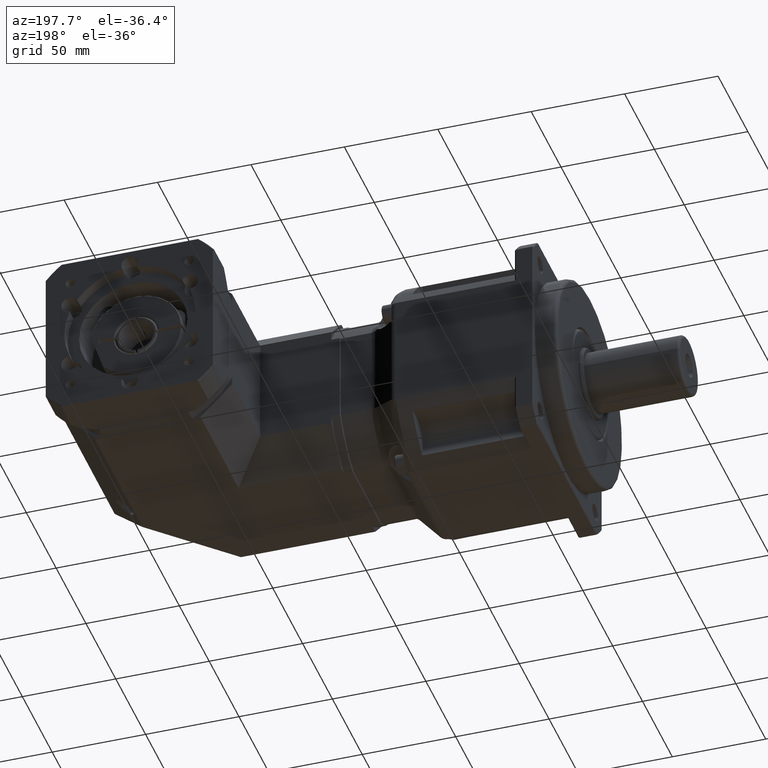
[diagram: clean part render]
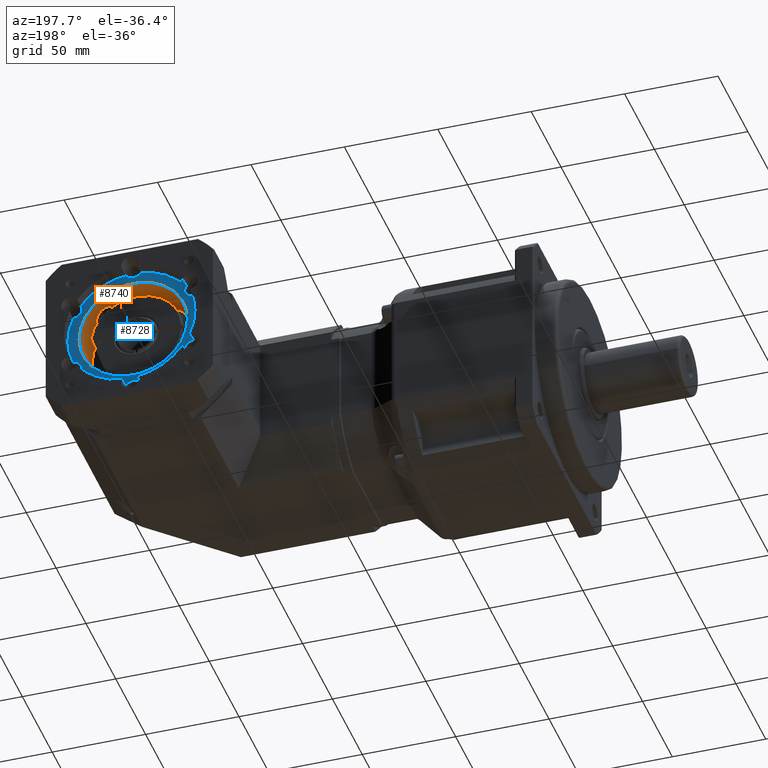
[diagram: same view with the hole feature highlighted: cylindrical wall and planar end face, labeled with their STEP entity ids]
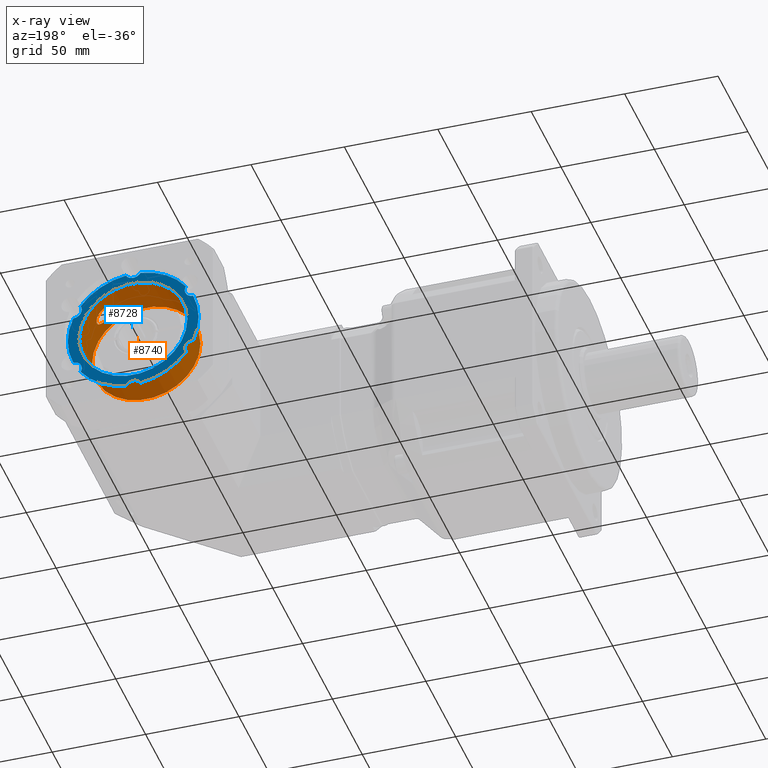
[diagram: x-ray of the same camera — body ghosted, the hole faces saturated]
A machine part, auxiliary view. The highlighted faces form one hole feature of diameter 58 mm: the cylindrical wall (entity #8740, orange) and its adjacent planar end face (entity #8728, blue) — they share a circular edge in the B-rep.
The next image is the same camera in x-ray (body ghosted, the hole faces saturated) — the bore reads through the body.
Wall:
#55=B_SPLINE_CURVE_WITH_KNOTS('',3,(#13800,#13801,#13802,#13803,#13804,
#13805,#13806,#13807,#13808,#13809,#13810,#13811,#13812,#13813,#13814,#13815,
#13816,#13817,#13818,#13819,#13820,#13821,#13822,#13823,#13824,#13825,#13826,
#13827,#13828,#13829,#13830,#13831,#13832,#13833,#13834,#13835,#13836,#13837),
 .UNSPECIFIED.,.T.,.F.,(4,2,2,2,2,2,2,2,2,2,2,2,2,2,2,2,2,2,4),(0.,0.157229399797883,
0.314458799595766,0.51769740609777,0.720936012599774,0.954604485668791,
1.18827295873781,1.35156570908636,1.43321208426064,1.51485845943492,1.5965048346092,
1.67815120978348,1.84144396013203,2.07511243320105,2.30878090627007,2.51201951277207,
2.71525811927407,2.87248751907196,3.02971691886984),.UNSPECIFIED.);
#1882=FACE_BOUND('',#3070,.T.);
#1883=FACE_BOUND('',#3071,.T.);
#2081=CYLINDRICAL_SURFACE('',#9526,29.);
#2382=FACE_OUTER_BOUND('',#3069,.T.);
#3069=EDGE_LOOP('',(#6655));
#3070=EDGE_LOOP('',(#6656));
#3071=EDGE_LOOP('',(#6657));
#3729=CIRCLE('',#9465,29.);
#3753=CIRCLE('',#9508,29.);
#4250=VERTEX_POINT('',#13698);
#4274=VERTEX_POINT('',#13775);
#4279=VERTEX_POINT('',#13799);
#5139=EDGE_CURVE('',#4250,#4250,#3729,.T.);
#5173=EDGE_CURVE('',#4274,#4274,#3753,.T.);
#5182=EDGE_CURVE('',#4279,#4279,#55,.T.);
#6655=ORIENTED_EDGE('',*,*,#5139,.F.);
#6656=ORIENTED_EDGE('',*,*,#5182,.T.);
#6657=ORIENTED_EDGE('',*,*,#5173,.F.);
#8740=ADVANCED_FACE('',(#2382,#1882,#1883),#2081,.F.);
#9465=AXIS2_PLACEMENT_3D('',#13699,#10895,#10896);
#9508=AXIS2_PLACEMENT_3D('',#13776,#10991,#10992);
#9526=AXIS2_PLACEMENT_3D('',#13839,#11029,#11030);
#10895=DIRECTION('center_axis',(4.11158999029255E-16,1.,-9.48319852898742E-16));
#10896=DIRECTION('ref_axis',(1.,-4.11158999029253E-16,2.28983498828939E-15));
#10991=DIRECTION('center_axis',(-4.11158999029255E-16,-1.,9.48319852898742E-16));
#10992=DIRECTION('ref_axis',(2.28983498828939E-15,-9.48319852898743E-16,
-1.));
#11029=DIRECTION('center_axis',(-4.11158999029255E-16,-1.,9.48319852898742E-16));
#11030=DIRECTION('ref_axis',(1.,-4.11158999029253E-16,2.28983498828939E-15));
#13698=CARTESIAN_POINT('',(105.18543651439,130.060822002382,78.3757214891252));
#13699=CARTESIAN_POINT('Origin',(76.1854365143904,130.060822002382,78.3757214891251));
#13775=CARTESIAN_POINT('',(105.18543651439,152.060822002382,78.3757214891252));
#13776=CARTESIAN_POINT('Origin',(76.1854365143904,152.060822002382,78.3757214891251));
#13799=CARTESIAN_POINT('',(90.9354365143903,140.060822002382,103.344451933423));
#13800=CARTESIAN_POINT('Ctrl Pts',(90.9354365143903,140.060822002382,103.344451933423));
#13801=CARTESIAN_POINT('Ctrl Pts',(90.9354365143903,139.536724003055,103.344451933423));
#13802=CARTESIAN_POINT('Ctrl Pts',(91.0388746059095,138.983569951315,103.284164480848));
#13803=CARTESIAN_POINT('Ctrl Pts',(91.4403397721988,137.980270427306,103.040333488923));
#13804=CARTESIAN_POINT('Ctrl Pts',(91.7376539122674,137.530055435058,102.855903498028));
#13805=CARTESIAN_POINT('Ctrl Pts',(92.4826079295844,136.723059572804,102.368514870287));
#13806=CARTESIAN_POINT('Ctrl Pts',(93.0063129662579,136.364053446764,102.008884479559));
#13807=CARTESIAN_POINT('Ctrl Pts',(94.1023081566822,135.908532493311,101.189182244091));
#13808=CARTESIAN_POINT('Ctrl Pts',(94.6736279197372,135.810822002382,100.728478217325));
#13809=CARTESIAN_POINT('Ctrl Pts',(95.773875565782,135.810822002382,99.7743133309052));
#13810=CARTESIAN_POINT('Ctrl Pts',(96.3846260297894,135.937974806144,99.1994505043504));
#13811=CARTESIAN_POINT('Ctrl Pts',(97.4976359481977,136.442858669521,98.0588386546101));
#13812=CARTESIAN_POINT('Ctrl Pts',(98.0009158965047,136.818421557566,97.4931269630925));
#13813=CARTESIAN_POINT('Ctrl Pts',(98.6830734390323,137.608592305444,96.6800093156625));
#13814=CARTESIAN_POINT('Ctrl Pts',(98.94988206349,138.022717440679,96.3444405903404));
#13815=CARTESIAN_POINT('Ctrl Pts',(99.2322337538544,138.737365654983,95.9788135064027));
#13816=CARTESIAN_POINT('Ctrl Pts',(99.3073431446932,138.991224869996,95.8795661052213));
#13817=CARTESIAN_POINT('Ctrl Pts',(99.4089712674902,139.516849143663,95.7445031431796));
#13818=CARTESIAN_POINT('Ctrl Pts',(99.4354365143904,139.788667418467,95.7088545007881));
#13819=CARTESIAN_POINT('Ctrl Pts',(99.4354365143904,140.332976586296,95.7088545007881));
#13820=CARTESIAN_POINT('Ctrl Pts',(99.4089712674902,140.6047948611,95.7445031431796));
#13821=CARTESIAN_POINT('Ctrl Pts',(99.3073431446932,141.130419134767,95.8795661052213));
#13822=CARTESIAN_POINT('Ctrl Pts',(99.2322337538544,141.38427834978,95.9788135064027));
#13823=CARTESIAN_POINT('Ctrl Pts',(98.94988206349,142.098926564084,96.3444405903404));
#13824=CARTESIAN_POINT('Ctrl Pts',(98.6830734390323,142.513051699319,96.6800093156625));
#13825=CARTESIAN_POINT('Ctrl Pts',(98.0009158965047,143.303222447197,97.4931269630925));
#13826=CARTESIAN_POINT('Ctrl Pts',(97.4976359481977,143.678785335242,98.05883865461));
#13827=CARTESIAN_POINT('Ctrl Pts',(96.3846260297894,144.183669198619,99.1994505043504));
#13828=CARTESIAN_POINT('Ctrl Pts',(95.773875565782,144.310822002382,99.7743133309052));
#13829=CARTESIAN_POINT('Ctrl Pts',(94.6736279197372,144.310822002382,100.728478217325));
#13830=CARTESIAN_POINT('Ctrl Pts',(94.1023081566822,144.213111511452,101.189182244091));
#13831=CARTESIAN_POINT('Ctrl Pts',(93.0063129662579,143.757590557999,102.008884479559));
#13832=CARTESIAN_POINT('Ctrl Pts',(92.4826079295844,143.39858443196,102.368514870287));
#13833=CARTESIAN_POINT('Ctrl Pts',(91.7376539122674,142.591588569705,102.855903498028));
#13834=CARTESIAN_POINT('Ctrl Pts',(91.4403397721988,142.141373577457,103.040333488923));
#13835=CARTESIAN_POINT('Ctrl Pts',(91.0388746059095,141.138074053448,103.284164480848));
#13836=CARTESIAN_POINT('Ctrl Pts',(90.9354365143904,140.584920001708,103.344451933423));
#13837=CARTESIAN_POINT('Ctrl Pts',(90.9354365143904,140.060822002382,103.344451933423));
#13839=CARTESIAN_POINT('Origin',(76.1854365143904,141.060822002382,78.3757214891251));
End face:
#1878=FACE_BOUND('',#3054,.T.);
#2370=FACE_OUTER_BOUND('',#3053,.T.);
#3053=EDGE_LOOP('',(#6597,#6598,#6599,#6600,#6601,#6602,#6603,#6604,#6605,
#6606,#6607,#6608));
#3054=EDGE_LOOP('',(#6609));
#3736=CIRCLE('',#9482,4.5);
#3738=CIRCLE('',#9486,4.5);
#3740=CIRCLE('',#9490,4.5);
#3743=CIRCLE('',#9495,4.5);
#3745=CIRCLE('',#9499,4.5);
#3746=CIRCLE('',#9501,35.);
#3747=CIRCLE('',#9502,35.);
#3748=CIRCLE('',#9503,35.);
#3749=CIRCLE('',#9504,35.);
#3750=CIRCLE('',#9505,35.);
#3751=CIRCLE('',#9506,4.5);
#3752=CIRCLE('',#9507,35.);
#3753=CIRCLE('',#9508,29.);
#4257=VERTEX_POINT('',#13722);
#4258=VERTEX_POINT('',#13724);
#4260=VERTEX_POINT('',#13731);
#4261=VERTEX_POINT('',#13733);
#4263=VERTEX_POINT('',#13740);
#4264=VERTEX_POINT('',#13742);
#4267=VERTEX_POINT('',#13751);
#4268=VERTEX_POINT('',#13753);
#4270=VERTEX_POINT('',#13760);
#4271=VERTEX_POINT('',#13762);
#4272=VERTEX_POINT('',#13770);
#4273=VERTEX_POINT('',#13772);
#4274=VERTEX_POINT('',#13775);
#5147=EDGE_CURVE('',#4258,#4257,#3736,.T.);
#5151=EDGE_CURVE('',#4261,#4260,#3738,.T.);
#5155=EDGE_CURVE('',#4264,#4263,#3740,.T.);
#5160=EDGE_CURVE('',#4268,#4267,#3743,.T.);
#5164=EDGE_CURVE('',#4271,#4270,#3745,.T.);
#5166=EDGE_CURVE('',#4261,#4257,#3746,.T.);
#5167=EDGE_CURVE('',#4264,#4260,#3747,.T.);
#5168=EDGE_CURVE('',#4268,#4263,#3748,.T.);
#5169=EDGE_CURVE('',#4271,#4267,#3749,.T.);
#5170=EDGE_CURVE('',#4272,#4270,#3750,.T.);
#5171=EDGE_CURVE('',#4272,#4273,#3751,.T.);
#5172=EDGE_CURVE('',#4258,#4273,#3752,.T.);
#5173=EDGE_CURVE('',#4274,#4274,#3753,.T.);
#6597=ORIENTED_EDGE('',*,*,#5147,.T.);
#6598=ORIENTED_EDGE('',*,*,#5166,.F.);
#6599=ORIENTED_EDGE('',*,*,#5151,.T.);
#6600=ORIENTED_EDGE('',*,*,#5167,.F.);
#6601=ORIENTED_EDGE('',*,*,#5155,.T.);
#6602=ORIENTED_EDGE('',*,*,#5168,.F.);
#6603=ORIENTED_EDGE('',*,*,#5160,.T.);
#6604=ORIENTED_EDGE('',*,*,#5169,.F.);
#6605=ORIENTED_EDGE('',*,*,#5164,.T.);
#6606=ORIENTED_EDGE('',*,*,#5170,.F.);
#6607=ORIENTED_EDGE('',*,*,#5171,.T.);
#6608=ORIENTED_EDGE('',*,*,#5172,.F.);
#6609=ORIENTED_EDGE('',*,*,#5173,.T.);
#8336=PLANE('',#9500);
#8728=ADVANCED_FACE('',(#2370,#1878),#8336,.F.);
#9482=AXIS2_PLACEMENT_3D('',#13725,#10930,#10931);
#9486=AXIS2_PLACEMENT_3D('',#13734,#10940,#10941);
#9490=AXIS2_PLACEMENT_3D('',#13743,#10950,#10951);
#9495=AXIS2_PLACEMENT_3D('',#13754,#10962,#10963);
#9499=AXIS2_PLACEMENT_3D('',#13763,#10972,#10973);
#9500=AXIS2_PLACEMENT_3D('',#13765,#10975,#10976);
#9501=AXIS2_PLACEMENT_3D('',#13766,#10977,#10978);
#9502=AXIS2_PLACEMENT_3D('',#13767,#10979,#10980);
#9503=AXIS2_PLACEMENT_3D('',#13768,#10981,#10982);
#9504=AXIS2_PLACEMENT_3D('',#13769,#10983,#10984);
#9505=AXIS2_PLACEMENT_3D('',#13771,#10985,#10986);
#9506=AXIS2_PLACEMENT_3D('',#13773,#10987,#10988);
#9507=AXIS2_PLACEMENT_3D('',#13774,#10989,#10990);
#9508=AXIS2_PLACEMENT_3D('',#13776,#10991,#10992);
#10930=DIRECTION('center_axis',(-4.11158999029255E-16,-1.,9.48319852898742E-16));
#10931=DIRECTION('ref_axis',(0.866025403784438,1.18085788295456E-16,0.500000000000001));
#10940=DIRECTION('center_axis',(-4.11158999029255E-16,-1.,9.48319852898742E-16));
#10941=DIRECTION('ref_axis',(0.866025403784439,-8.30234064603286E-16,-0.499999999999998));
#10950=DIRECTION('center_axis',(-4.11158999029255E-16,-1.,9.48319852898742E-16));
#10951=DIRECTION('ref_axis',(2.10479781751853E-15,-9.48319852898743E-16,
-1.));
#10962=DIRECTION('center_axis',(-4.11158999029255E-16,-1.,9.48319852898742E-16));
#10963=DIRECTION('ref_axis',(-0.866025403784438,-1.18085788295457E-16,-0.500000000000002));
#10972=DIRECTION('center_axis',(-4.11158999029255E-16,-1.,9.48319852898742E-16));
#10973=DIRECTION('ref_axis',(-0.86602540378444,8.30234064603286E-16,0.499999999999998));
#10975=DIRECTION('center_axis',(-4.11158999029255E-16,-1.,9.48319852898742E-16));
#10976=DIRECTION('ref_axis',(2.8421709430404E-15,0.,-1.));
#10977=DIRECTION('center_axis',(-4.11158999029255E-16,-1.,9.48319852898742E-16));
#10978=DIRECTION('ref_axis',(2.28983498828939E-15,-9.48319852898743E-16,
-1.));
#10979=DIRECTION('center_axis',(-4.11158999029255E-16,-1.,9.48319852898742E-16));
#10980=DIRECTION('ref_axis',(2.28983498828939E-15,-9.48319852898743E-16,
-1.));
#10981=DIRECTION('center_axis',(-4.11158999029255E-16,-1.,9.48319852898742E-16));
#10982=DIRECTION('ref_axis',(2.28983498828939E-15,-9.48319852898743E-16,
-1.));
#10983=DIRECTION('center_axis',(-4.11158999029255E-16,-1.,9.48319852898742E-16));
#10984=DIRECTION('ref_axis',(2.28983498828939E-15,-9.48319852898743E-16,
-1.));
#10985=DIRECTION('center_axis',(-4.11158999029255E-16,-1.,9.48319852898742E-16));
#10986=DIRECTION('ref_axis',(2.28983498828939E-15,-9.48319852898743E-16,
-1.));
#10987=DIRECTION('center_axis',(-4.11158999029255E-16,-1.,9.48319852898742E-16));
#10988=DIRECTION('ref_axis',(-2.28983498828939E-15,9.48319852898743E-16,
1.));
#10989=DIRECTION('center_axis',(-4.11158999029255E-16,-1.,9.48319852898742E-16));
#10990=DIRECTION('ref_axis',(2.28983498828939E-15,-9.48319852898743E-16,
-1.));
#10991=DIRECTION('center_axis',(-4.11158999029255E-16,-1.,9.48319852898742E-16));
#10992=DIRECTION('ref_axis',(2.28983498828939E-15,-9.48319852898743E-16,
-1.));
#13722=CARTESIAN_POINT('',(108.263406870782,152.060822002382,92.3758578389765));
#13724=CARTESIAN_POINT('',(104.348895428004,152.060822002382,99.1559905446792));
#13725=CARTESIAN_POINT('Origin',(108.228376454415,152.060822002382,96.8757214891252));
#13731=CARTESIAN_POINT('',(104.348895428004,152.060822002381,57.5954524335711));
#13733=CARTESIAN_POINT('',(108.263406870783,152.060822002381,64.3755851392738));
#13734=CARTESIAN_POINT('Origin',(108.228376454415,152.060822002381,59.8757214891252));
#13740=CARTESIAN_POINT('',(72.2709250716117,152.060822002381,43.5953160837197));
#13742=CARTESIAN_POINT('',(80.0999479571693,152.060822002381,43.5953160837197));
#13743=CARTESIAN_POINT('Origin',(76.1854365143905,152.060822002381,41.3757214891251));
#13751=CARTESIAN_POINT('',(44.1074661579983,152.060822002382,64.3755851392737));
#13753=CARTESIAN_POINT('',(48.0219776007772,152.060822002382,57.595452433571));
#13754=CARTESIAN_POINT('Origin',(44.1424965743662,152.060822002382,59.875721489125));
#13760=CARTESIAN_POINT('',(48.0219776007771,152.060822002382,99.1559905446791));
#13762=CARTESIAN_POINT('',(44.1074661579983,152.060822002382,92.3758578389764));
#13763=CARTESIAN_POINT('Origin',(44.1424965743661,152.060822002382,96.8757214891251));
#13765=CARTESIAN_POINT('Origin',(105.18543651439,152.060822002382,78.3757214891252));
#13766=CARTESIAN_POINT('Origin',(76.1854365143904,152.060822002382,78.3757214891251));
#13767=CARTESIAN_POINT('Origin',(76.1854365143904,152.060822002382,78.3757214891251));
#13768=CARTESIAN_POINT('Origin',(76.1854365143904,152.060822002382,78.3757214891251));
#13769=CARTESIAN_POINT('Origin',(76.1854365143904,152.060822002382,78.3757214891251));
#13770=CARTESIAN_POINT('',(72.2709250716115,152.060822002382,113.156126894531));
#13771=CARTESIAN_POINT('Origin',(76.1854365143904,152.060822002382,78.3757214891251));
#13772=CARTESIAN_POINT('',(80.0999479571691,152.060822002382,113.156126894531));
#13773=CARTESIAN_POINT('Origin',(76.1854365143903,152.060822002382,115.375721489125));
#13774=CARTESIAN_POINT('Origin',(76.1854365143904,152.060822002382,78.3757214891251));
#13775=CARTESIAN_POINT('',(105.18543651439,152.060822002382,78.3757214891252));
#13776=CARTESIAN_POINT('Origin',(76.1854365143904,152.060822002382,78.3757214891251));